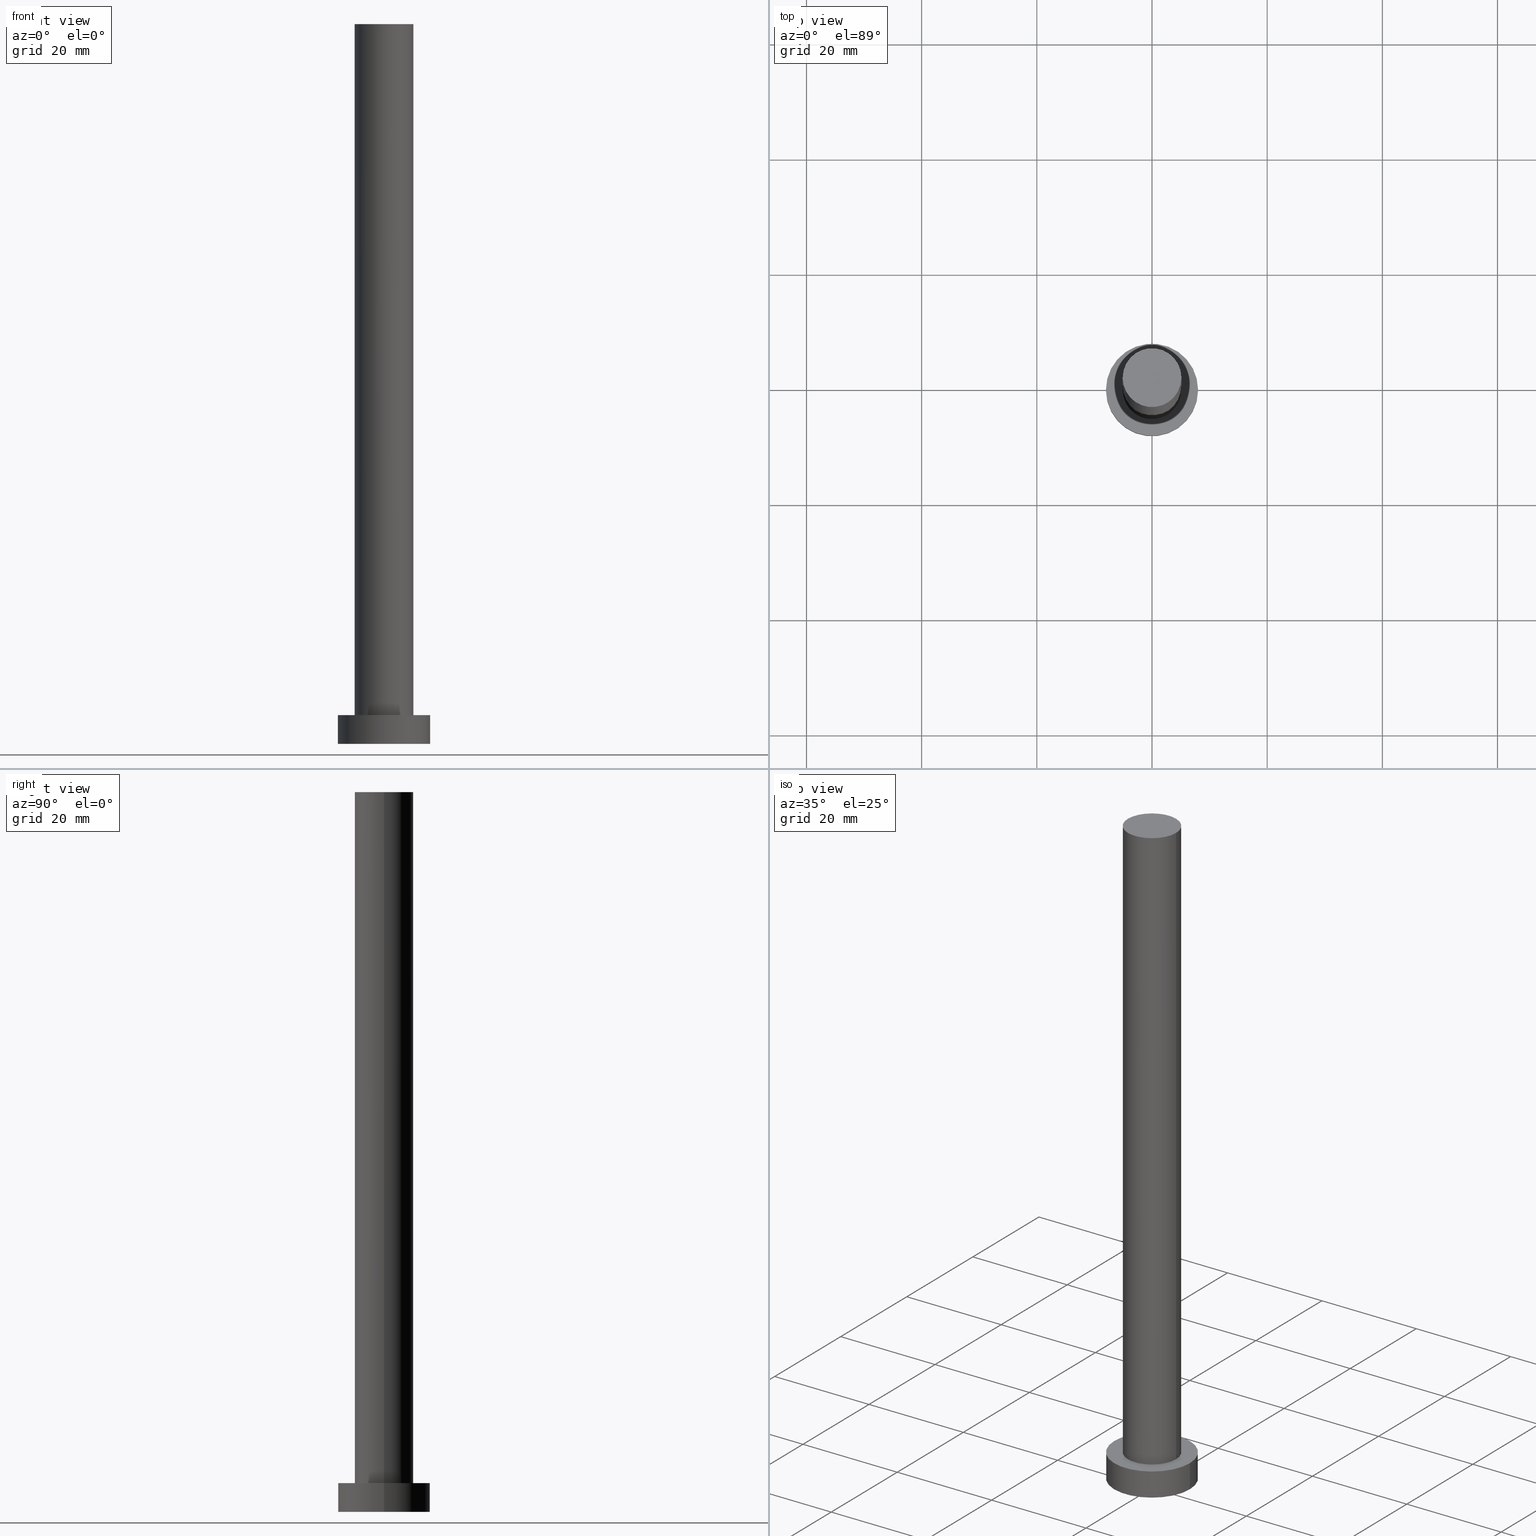
[diagram: canonical four-view strip — front | top / right | iso, engineering-drawing reading convention]
A machine part, canonical four-view strip (front | top / right | iso — engineering-drawing reading convention). The complete STEP part file that produces these views, byte-faithful:
ISO-10303-21;
HEADER;
FILE_DESCRIPTION (( 'STEP AP203' ),
    '1' );
FILE_NAME ('ab03.STEP',
    '2023-02-13T13:16:17',
    ( '' ),
    ( '' ),
    'SwSTEP 2.0',
    'SolidWorks 2019',
    '' );
FILE_SCHEMA (( 'CONFIG_CONTROL_DESIGN' ));
ENDSEC;

DATA;
#1 = DIRECTION ( 'NONE',  ( -0.000000000000000000, -0.000000000000000000, -1.000000000000000000 ) ) ;
#2 = APPROVAL_PERSON_ORGANIZATION ( #227, #40, #85 ) ;
#3 = CARTESIAN_POINT ( 'NONE',  ( 5.099999999999999645, 6.245698675651500839E-16, 125.0000000000000000 ) ) ;
#4 = AXIS2_PLACEMENT_3D ( 'NONE', #135, #86, #87 ) ;
#5 = CARTESIAN_POINT ( 'NONE',  ( -8.000000000000000000, 0.000000000000000000, 5.000000000000000000 ) ) ;
#6 = APPLICATION_PROTOCOL_DEFINITION ( 'international standard', 'config_control_design', 1994, #169 ) ;
#7 = LOCAL_TIME ( 14, 16, 17.00000000000000000, #183 ) ;
#8 = EDGE_CURVE ( 'NONE', #83, #212, #221, .T. ) ;
#9 = SHAPE_DEFINITION_REPRESENTATION ( #141, #186 ) ;
#10 = ORIENTED_EDGE ( 'NONE', *, *, #194, .F. ) ;
#11 = CARTESIAN_POINT ( 'NONE',  ( 0.000000000000000000, 0.000000000000000000, 125.0000000000000000 ) ) ;
#12 = APPROVAL ( #128, 'NEUR�EN�' ) ;
#13 = CARTESIAN_POINT ( 'NONE',  ( 0.000000000000000000, 0.000000000000000000, 125.0000000000000000 ) ) ;
#14 = CC_DESIGN_APPROVAL ( #104, ( #189 ) ) ;
#15 = CYLINDRICAL_SURFACE ( 'NONE', #22, 8.000000000000000000 ) ;
#16 = DIRECTION ( 'NONE',  ( 0.000000000000000000, 0.000000000000000000, 1.000000000000000000 ) ) ;
#17 = CARTESIAN_POINT ( 'NONE',  ( 0.000000000000000000, 0.000000000000000000, 5.000000000000000000 ) ) ;
#18 = CIRCLE ( 'NONE', #66, 8.000000000000000000 ) ;
#19 = CARTESIAN_POINT ( 'NONE',  ( 5.099999999999999645, 6.245698675651500839E-16, 125.0000000000000000 ) ) ;
#20 = DIRECTION ( 'NONE',  ( 0.000000000000000000, 0.000000000000000000, 1.000000000000000000 ) ) ;
#21 = DIRECTION ( 'NONE',  ( 0.000000000000000000, 0.000000000000000000, 1.000000000000000000 ) ) ;
#22 = AXIS2_PLACEMENT_3D ( 'NONE', #175, #215, #35 ) ;
#23 = PRODUCT_DEFINITION_FORMATION_WITH_SPECIFIED_SOURCE ( 'LIBOVOLN�', '', #117, .NOT_KNOWN. ) ;
#24 = PERSON_AND_ORGANIZATION ( #226, #249 ) ;
#25 = PERSON_AND_ORGANIZATION ( #226, #249 ) ;
#26 = EDGE_CURVE ( 'NONE', #212, #83, #239, .T. ) ;
#27 = ORIENTED_EDGE ( 'NONE', *, *, #237, .T. ) ;
#28 = ADVANCED_FACE ( 'NONE', ( #116 ), #193, .T. ) ;
#29 = CARTESIAN_POINT ( 'NONE',  ( 0.000000000000000000, 0.000000000000000000, 5.000000000000000000 ) ) ;
#30 = EDGE_CURVE ( 'NONE', #244, #68, #56, .T. ) ;
#31 = DIRECTION ( 'NONE',  ( -1.000000000000000000, 0.000000000000000000, 0.000000000000000000 ) ) ;
#32 = DESIGN_CONTEXT ( 'detailed design', #169, 'design' ) ;
#33 = AXIS2_PLACEMENT_3D ( 'NONE', #13, #53, #251 ) ;
#34 = PLANE ( 'NONE',  #47 ) ;
#35 = DIRECTION ( 'NONE',  ( -1.000000000000000000, 0.000000000000000000, 0.000000000000000000 ) ) ;
#36 = EDGE_LOOP ( 'NONE', ( #133, #154 ) ) ;
#37 = CC_DESIGN_SECURITY_CLASSIFICATION ( #105, ( #23 ) ) ;
#38 = UNCERTAINTY_MEASURE_WITH_UNIT (LENGTH_MEASURE( 1.000000000000000082E-05 ), #95, 'distance_accuracy_value', 'NONE');
#39 = APPLICATION_PROTOCOL_DEFINITION ( 'international standard', 'config_control_design', 1994, #153 ) ;
#40 = APPROVAL ( #190, 'NEUR�EN�' ) ;
#41 = DIRECTION ( 'NONE',  ( -0.000000000000000000, -0.000000000000000000, -1.000000000000000000 ) ) ;
#42 = DIRECTION ( 'NONE',  ( 1.000000000000000000, 0.000000000000000000, -0.000000000000000000 ) ) ;
#43 = DIRECTION ( 'NONE',  ( -1.000000000000000000, 0.000000000000000000, 0.000000000000000000 ) ) ;
#44 = PERSON_AND_ORGANIZATION ( #226, #249 ) ;
#45 = ADVANCED_FACE ( 'NONE', ( #173, #252 ), #109, .T. ) ;
#46 = COORDINATED_UNIVERSAL_TIME_OFFSET ( 1, 0, .AHEAD. ) ;
#47 = AXIS2_PLACEMENT_3D ( 'NONE', #113, #197, #199 ) ;
#48 = ORIENTED_EDGE ( 'NONE', *, *, #195, .T. ) ;
#49 = VERTEX_POINT ( 'NONE', #235 ) ;
#50 = ORIENTED_EDGE ( 'NONE', *, *, #172, .F. ) ;
#51 = VECTOR ( 'NONE', #41, 1000.000000000000000 ) ;
#52 = VERTEX_POINT ( 'NONE', #174 ) ;
#53 = DIRECTION ( 'NONE',  ( -0.000000000000000000, -0.000000000000000000, -1.000000000000000000 ) ) ;
#54 = AXIS2_PLACEMENT_3D ( 'NONE', #140, #180, #96 ) ;
#55 = CARTESIAN_POINT ( 'NONE',  ( -8.000000000000000000, 0.000000000000000000, 0.000000000000000000 ) ) ;
#56 = LINE ( 'NONE', #139, #70 ) ;
#57 = DIRECTION ( 'NONE',  ( 1.000000000000000000, 0.000000000000000000, 0.000000000000000000 ) ) ;
#58 = LINE ( 'NONE', #19, #209 ) ;
#59 = CC_DESIGN_DATE_AND_TIME_ASSIGNMENT ( #81, #243, ( #189 ) ) ;
#60 = AXIS2_PLACEMENT_3D ( 'NONE', #17, #72, #254 ) ;
#61 = CARTESIAN_POINT ( 'NONE',  ( 0.000000000000000000, 0.000000000000000000, 125.0000000000000000 ) ) ;
#62 = CIRCLE ( 'NONE', #130, 5.099999999999999645 ) ;
#63 = COORDINATED_UNIVERSAL_TIME_OFFSET ( 1, 0, .AHEAD. ) ;
#64 = ORIENTED_EDGE ( 'NONE', *, *, #198, .T. ) ;
#65 = DATE_AND_TIME ( #250, #192 ) ;
#66 = AXIS2_PLACEMENT_3D ( 'NONE', #178, #121, #217 ) ;
#67 = APPROVAL_DATE_TIME ( #107, #104 ) ;
#68 = VERTEX_POINT ( 'NONE', #55 ) ;
#69 = FACE_OUTER_BOUND ( 'NONE', #176, .T. ) ;
#70 = VECTOR ( 'NONE', #1, 1000.000000000000000 ) ;
#71 = DIRECTION ( 'NONE',  ( -0.000000000000000000, -0.000000000000000000, -1.000000000000000000 ) ) ;
#72 = DIRECTION ( 'NONE',  ( 0.000000000000000000, 0.000000000000000000, 1.000000000000000000 ) ) ;
#73 = EDGE_LOOP ( 'NONE', ( #134, #185, #213, #64 ) ) ;
#74 = ORIENTED_EDGE ( 'NONE', *, *, #26, .T. ) ;
#75 = CC_DESIGN_APPROVAL ( #40, ( #105 ) ) ;
#76 = CARTESIAN_POINT ( 'NONE',  ( 0.000000000000000000, 0.000000000000000000, 5.000000000000000000 ) ) ;
#77 = FACE_OUTER_BOUND ( 'NONE', #211, .T. ) ;
#78 = PERSON_AND_ORGANIZATION ( #226, #249 ) ;
#79 = PERSON_AND_ORGANIZATION ( #226, #249 ) ;
#80 = CLOSED_SHELL ( 'NONE', ( #111, #122, #28, #45, #119, #152, #245 ) ) ;
#81 = DATE_AND_TIME ( #224, #166 ) ;
#82 = CC_DESIGN_DATE_AND_TIME_ASSIGNMENT ( #230, #248, ( #105 ) ) ;
#83 = VERTEX_POINT ( 'NONE', #216 ) ;
#84 = ORIENTED_EDGE ( 'NONE', *, *, #26, .F. ) ;
#85 = APPROVAL_ROLE ( '' ) ;
#86 = DIRECTION ( 'NONE',  ( 0.000000000000000000, 0.000000000000000000, 1.000000000000000000 ) ) ;
#87 = DIRECTION ( 'NONE',  ( 1.000000000000000000, 0.000000000000000000, 0.000000000000000000 ) ) ;
#88 =( GEOMETRIC_REPRESENTATION_CONTEXT ( 3 ) GLOBAL_UNCERTAINTY_ASSIGNED_CONTEXT ( ( #38 ) ) GLOBAL_UNIT_ASSIGNED_CONTEXT ( ( #95, #162, #219 ) ) REPRESENTATION_CONTEXT ( 'NONE', 'WORKASPACE' ) );
#89 = CARTESIAN_POINT ( 'NONE',  ( 8.000000000000000000, 9.797174393178825657E-16, 5.000000000000000000 ) ) ;
#90 = EDGE_LOOP ( 'NONE', ( #223, #103, #115, #27 ) ) ;
#91 = EDGE_CURVE ( 'NONE', #52, #131, #112, .T. ) ;
#92 = CARTESIAN_POINT ( 'NONE',  ( 0.000000000000000000, 0.000000000000000000, 125.0000000000000000 ) ) ;
#93 = EDGE_CURVE ( 'NONE', #49, #231, #159, .T. ) ;
#94 = DIRECTION ( 'NONE',  ( -0.000000000000000000, -0.000000000000000000, -1.000000000000000000 ) ) ;
#95 =( LENGTH_UNIT ( ) NAMED_UNIT ( * ) SI_UNIT ( .MILLI., .METRE. ) );
#96 = DIRECTION ( 'NONE',  ( 1.000000000000000000, 0.000000000000000000, 0.000000000000000000 ) ) ;
#97 = CIRCLE ( 'NONE', #54, 8.000000000000000000 ) ;
#98 = APPROVAL_PERSON_ORGANIZATION ( #25, #12, #102 ) ;
#99 = CARTESIAN_POINT ( 'NONE',  ( 0.000000000000000000, 0.000000000000000000, 0.000000000000000000 ) ) ;
#100 = CC_DESIGN_PERSON_AND_ORGANIZATION_ASSIGNMENT ( #44, #101, ( #189 ) ) ;
#101 = PERSON_AND_ORGANIZATION_ROLE ( 'creator' ) ;
#102 = APPROVAL_ROLE ( '' ) ;
#103 = ORIENTED_EDGE ( 'NONE', *, *, #8, .F. ) ;
#104 = APPROVAL ( #165, 'NEUR�EN�' ) ;
#105 = SECURITY_CLASSIFICATION ( '', '', #229 ) ;
#106 = APPROVAL_DATE_TIME ( #168, #12 ) ;
#107 = DATE_AND_TIME ( #125, #218 ) ;
#108 = AXIS2_PLACEMENT_3D ( 'NONE', #29, #200, #31 ) ;
#109 = PLANE ( 'NONE',  #60 ) ;
#110 = FACE_OUTER_BOUND ( 'NONE', #247, .T. ) ;
#111 = ADVANCED_FACE ( 'NONE', ( #110 ), #196, .T. ) ;
#112 = CIRCLE ( 'NONE', #129, 5.099999999999999645 ) ;
#113 = CARTESIAN_POINT ( 'NONE',  ( 0.000000000000000000, 0.000000000000000000, 0.000000000000000000 ) ) ;
#114 = AXIS2_PLACEMENT_3D ( 'NONE', #99, #145, #222 ) ;
#115 = ORIENTED_EDGE ( 'NONE', *, *, #172, .T. ) ;
#116 = FACE_OUTER_BOUND ( 'NONE', #73, .T. ) ;
#117 = PRODUCT ( 'ab03', 'ab03', '', ( #120 ) ) ;
#118 = PLANE ( 'NONE',  #228 ) ;
#119 = ADVANCED_FACE ( 'NONE', ( #137 ), #34, .F. ) ;
#120 = MECHANICAL_CONTEXT ( 'NONE', #153, 'mechanical' ) ;
#121 = DIRECTION ( 'NONE',  ( 0.000000000000000000, 0.000000000000000000, 1.000000000000000000 ) ) ;
#122 = ADVANCED_FACE ( 'NONE', ( #69 ), #15, .T. ) ;
#123 = DIRECTION ( 'NONE',  ( -0.000000000000000000, -0.000000000000000000, -1.000000000000000000 ) ) ;
#124 = CARTESIAN_POINT ( 'NONE',  ( -5.099999999999999645, 0.000000000000000000, 125.0000000000000000 ) ) ;
#125 = CALENDAR_DATE ( 2023, 13, 2 ) ;
#126 = EDGE_CURVE ( 'NONE', #49, #244, #97, .T. ) ;
#127 = ORIENTED_EDGE ( 'NONE', *, *, #93, .T. ) ;
#128 = APPROVAL_STATUS ( 'not_yet_approved' ) ;
#129 = AXIS2_PLACEMENT_3D ( 'NONE', #171, #157, #233 ) ;
#130 = AXIS2_PLACEMENT_3D ( 'NONE', #205, #177, #57 ) ;
#131 = VERTEX_POINT ( 'NONE', #203 ) ;
#132 = PERSON_AND_ORGANIZATION ( #226, #249 ) ;
#133 = ORIENTED_EDGE ( 'NONE', *, *, #234, .T. ) ;
#134 = ORIENTED_EDGE ( 'NONE', *, *, #93, .F. ) ;
#135 = CARTESIAN_POINT ( 'NONE',  ( 0.000000000000000000, 0.000000000000000000, 125.0000000000000000 ) ) ;
#136 = CC_DESIGN_PERSON_AND_ORGANIZATION_ASSIGNMENT ( #79, #191, ( #105 ) ) ;
#137 = FACE_OUTER_BOUND ( 'NONE', #188, .T. ) ;
#138 = VECTOR ( 'NONE', #71, 1000.000000000000000 ) ;
#139 = CARTESIAN_POINT ( 'NONE',  ( -8.000000000000000000, 0.000000000000000000, 5.000000000000000000 ) ) ;
#140 = CARTESIAN_POINT ( 'NONE',  ( 0.000000000000000000, 0.000000000000000000, 5.000000000000000000 ) ) ;
#141 = PRODUCT_DEFINITION_SHAPE ( 'NONE', 'NONE',  #189 ) ;
#142 = MANIFOLD_SOLID_BREP ( 'P�idat vysunut�m3', #80 ) ;
#143 = CARTESIAN_POINT ( 'NONE',  ( 8.000000000000000000, 9.797174393178825657E-16, 0.000000000000000000 ) ) ;
#144 = LINE ( 'NONE', #124, #51 ) ;
#145 = DIRECTION ( 'NONE',  ( 0.000000000000000000, 0.000000000000000000, 1.000000000000000000 ) ) ;
#146 = AXIS2_PLACEMENT_3D ( 'NONE', #76, #20, #164 ) ;
#147 = ORIENTED_EDGE ( 'NONE', *, *, #194, .T. ) ;
#148 = CALENDAR_DATE ( 2023, 13, 2 ) ;
#149 = ORIENTED_EDGE ( 'NONE', *, *, #198, .F. ) ;
#150 = ORIENTED_EDGE ( 'NONE', *, *, #30, .F. ) ;
#151 = APPROVAL_DATE_TIME ( #65, #40 ) ;
#152 = ADVANCED_FACE ( 'NONE', ( #161 ), #241, .T. ) ;
#153 = APPLICATION_CONTEXT ( 'configuration controlled 3d designs of mechanical parts and assemblies' ) ;
#154 = ORIENTED_EDGE ( 'NONE', *, *, #126, .T. ) ;
#155 = CC_DESIGN_APPROVAL ( #12, ( #23 ) ) ;
#156 = ORIENTED_EDGE ( 'NONE', *, *, #126, .F. ) ;
#157 = DIRECTION ( 'NONE',  ( 0.000000000000000000, 0.000000000000000000, 1.000000000000000000 ) ) ;
#158 = ORIENTED_EDGE ( 'NONE', *, *, #91, .F. ) ;
#159 = LINE ( 'NONE', #89, #138 ) ;
#160 = CIRCLE ( 'NONE', #146, 8.000000000000000000 ) ;
#161 = FACE_OUTER_BOUND ( 'NONE', #90, .T. ) ;
#162 =( NAMED_UNIT ( * ) PLANE_ANGLE_UNIT ( ) SI_UNIT ( $, .RADIAN. ) );
#163 = AXIS2_PLACEMENT_3D ( 'NONE', #11, #16, #232 ) ;
#164 = DIRECTION ( 'NONE',  ( 1.000000000000000000, 0.000000000000000000, 0.000000000000000000 ) ) ;
#165 = APPROVAL_STATUS ( 'not_yet_approved' ) ;
#166 = LOCAL_TIME ( 14, 16, 17.00000000000000000, #63 ) ;
#167 = PERSON_AND_ORGANIZATION ( #226, #249 ) ;
#168 = DATE_AND_TIME ( #184, #170 ) ;
#169 = APPLICATION_CONTEXT ( 'configuration controlled 3d designs of mechanical parts and assemblies' ) ;
#170 = LOCAL_TIME ( 14, 16, 17.00000000000000000, #207 ) ;
#171 = CARTESIAN_POINT ( 'NONE',  ( 0.000000000000000000, 0.000000000000000000, 5.000000000000000000 ) ) ;
#172 = EDGE_CURVE ( 'NONE', #83, #131, #144, .T. ) ;
#173 = FACE_BOUND ( 'NONE', #236, .T. ) ;
#174 = CARTESIAN_POINT ( 'NONE',  ( 5.099999999999999645, 6.245698675651500839E-16, 5.000000000000000000 ) ) ;
#175 = CARTESIAN_POINT ( 'NONE',  ( 0.000000000000000000, 0.000000000000000000, 5.000000000000000000 ) ) ;
#176 = EDGE_LOOP ( 'NONE', ( #156, #127, #147, #150 ) ) ;
#177 = DIRECTION ( 'NONE',  ( 0.000000000000000000, 0.000000000000000000, 1.000000000000000000 ) ) ;
#178 = CARTESIAN_POINT ( 'NONE',  ( 0.000000000000000000, 0.000000000000000000, 0.000000000000000000 ) ) ;
#179 = CC_DESIGN_PERSON_AND_ORGANIZATION_ASSIGNMENT ( #132, #187, ( #23 ) ) ;
#180 = DIRECTION ( 'NONE',  ( 0.000000000000000000, 0.000000000000000000, 1.000000000000000000 ) ) ;
#181 = AXIS2_PLACEMENT_3D ( 'NONE', #204, #21, #238 ) ;
#182 = PERSON_AND_ORGANIZATION_ROLE ( 'design_owner' ) ;
#183 = COORDINATED_UNIVERSAL_TIME_OFFSET ( 1, 0, .AHEAD. ) ;
#184 = CALENDAR_DATE ( 2023, 13, 2 ) ;
#185 = ORIENTED_EDGE ( 'NONE', *, *, #234, .F. ) ;
#186 = ADVANCED_BREP_SHAPE_REPRESENTATION ( 'ab03', ( #142, #114 ), #88 ) ;
#187 = PERSON_AND_ORGANIZATION_ROLE ( 'design_supplier' ) ;
#188 = EDGE_LOOP ( 'NONE', ( #149, #10 ) ) ;
#189 = PRODUCT_DEFINITION ( 'NEZN�M�', '', #23, #32 ) ;
#190 = APPROVAL_STATUS ( 'not_yet_approved' ) ;
#191 = PERSON_AND_ORGANIZATION_ROLE ( 'classification_officer' ) ;
#192 = LOCAL_TIME ( 14, 16, 17.00000000000000000, #46 ) ;
#193 = CYLINDRICAL_SURFACE ( 'NONE', #108, 8.000000000000000000 ) ;
#194 = EDGE_CURVE ( 'NONE', #231, #68, #214, .T. ) ;
#195 = EDGE_CURVE ( 'NONE', #212, #52, #58, .T. ) ;
#196 = CYLINDRICAL_SURFACE ( 'NONE', #33, 5.099999999999999645 ) ;
#197 = DIRECTION ( 'NONE',  ( 0.000000000000000000, 0.000000000000000000, 1.000000000000000000 ) ) ;
#198 = EDGE_CURVE ( 'NONE', #68, #231, #18, .T. ) ;
#199 = DIRECTION ( 'NONE',  ( 1.000000000000000000, 0.000000000000000000, -0.000000000000000000 ) ) ;
#200 = DIRECTION ( 'NONE',  ( -0.000000000000000000, -0.000000000000000000, -1.000000000000000000 ) ) ;
#201 = AXIS2_PLACEMENT_3D ( 'NONE', #92, #123, #43 ) ;
#202 = CC_DESIGN_PERSON_AND_ORGANIZATION_ASSIGNMENT ( #24, #182, ( #117 ) ) ;
#203 = CARTESIAN_POINT ( 'NONE',  ( -5.099999999999999645, 0.000000000000000000, 5.000000000000000000 ) ) ;
#204 = CARTESIAN_POINT ( 'NONE',  ( 0.000000000000000000, 0.000000000000000000, 0.000000000000000000 ) ) ;
#205 = CARTESIAN_POINT ( 'NONE',  ( 0.000000000000000000, 0.000000000000000000, 5.000000000000000000 ) ) ;
#206 = COORDINATED_UNIVERSAL_TIME_OFFSET ( 1, 0, .AHEAD. ) ;
#207 = COORDINATED_UNIVERSAL_TIME_OFFSET ( 1, 0, .AHEAD. ) ;
#208 = ORIENTED_EDGE ( 'NONE', *, *, #237, .F. ) ;
#209 = VECTOR ( 'NONE', #94, 1000.000000000000000 ) ;
#210 = ORIENTED_EDGE ( 'NONE', *, *, #8, .T. ) ;
#211 = EDGE_LOOP ( 'NONE', ( #210, #74 ) ) ;
#212 = VERTEX_POINT ( 'NONE', #3 ) ;
#213 = ORIENTED_EDGE ( 'NONE', *, *, #30, .T. ) ;
#214 = CIRCLE ( 'NONE', #181, 8.000000000000000000 ) ;
#215 = DIRECTION ( 'NONE',  ( -0.000000000000000000, -0.000000000000000000, -1.000000000000000000 ) ) ;
#216 = CARTESIAN_POINT ( 'NONE',  ( -5.099999999999999645, 0.000000000000000000, 125.0000000000000000 ) ) ;
#217 = DIRECTION ( 'NONE',  ( 1.000000000000000000, 0.000000000000000000, 0.000000000000000000 ) ) ;
#218 = LOCAL_TIME ( 14, 16, 17.00000000000000000, #206 ) ;
#219 =( NAMED_UNIT ( * ) SI_UNIT ( $, .STERADIAN. ) SOLID_ANGLE_UNIT ( ) );
#220 = DIRECTION ( 'NONE',  ( 0.000000000000000000, 0.000000000000000000, 1.000000000000000000 ) ) ;
#221 = CIRCLE ( 'NONE', #163, 5.099999999999999645 ) ;
#222 = DIRECTION ( 'NONE',  ( 1.000000000000000000, 0.000000000000000000, 0.000000000000000000 ) ) ;
#223 = ORIENTED_EDGE ( 'NONE', *, *, #195, .F. ) ;
#224 = CALENDAR_DATE ( 2023, 13, 2 ) ;
#225 = CC_DESIGN_PERSON_AND_ORGANIZATION_ASSIGNMENT ( #167, #246, ( #23 ) ) ;
#226 = PERSON ( 'NEUR�EN�', 'NEUR�EN�', 'NEUR�EN�', ('NEUR�EN�'), ('NEUR�EN�'), ('NEUR�EN�') ) ;
#227 = PERSON_AND_ORGANIZATION ( #226, #249 ) ;
#228 = AXIS2_PLACEMENT_3D ( 'NONE', #61, #220, #42 ) ;
#229 = SECURITY_CLASSIFICATION_LEVEL ( 'unclassified' ) ;
#230 = DATE_AND_TIME ( #148, #7 ) ;
#231 = VERTEX_POINT ( 'NONE', #143 ) ;
#232 = DIRECTION ( 'NONE',  ( 1.000000000000000000, 0.000000000000000000, 0.000000000000000000 ) ) ;
#233 = DIRECTION ( 'NONE',  ( 1.000000000000000000, 0.000000000000000000, 0.000000000000000000 ) ) ;
#234 = EDGE_CURVE ( 'NONE', #244, #49, #160, .T. ) ;
#235 = CARTESIAN_POINT ( 'NONE',  ( 8.000000000000000000, 9.797174393178825657E-16, 5.000000000000000000 ) ) ;
#236 = EDGE_LOOP ( 'NONE', ( #208, #158 ) ) ;
#237 = EDGE_CURVE ( 'NONE', #131, #52, #62, .T. ) ;
#238 = DIRECTION ( 'NONE',  ( 1.000000000000000000, 0.000000000000000000, 0.000000000000000000 ) ) ;
#239 = CIRCLE ( 'NONE', #4, 5.099999999999999645 ) ;
#240 = APPROVAL_PERSON_ORGANIZATION ( #78, #104, #242 ) ;
#241 = CYLINDRICAL_SURFACE ( 'NONE', #201, 5.099999999999999645 ) ;
#242 = APPROVAL_ROLE ( '' ) ;
#243 = DATE_TIME_ROLE ( 'creation_date' ) ;
#244 = VERTEX_POINT ( 'NONE', #5 ) ;
#245 = ADVANCED_FACE ( 'NONE', ( #77 ), #118, .T. ) ;
#246 = PERSON_AND_ORGANIZATION_ROLE ( 'creator' ) ;
#247 = EDGE_LOOP ( 'NONE', ( #84, #48, #255, #50 ) ) ;
#248 = DATE_TIME_ROLE ( 'classification_date' ) ;
#249 = ORGANIZATION ( 'NEUR�EN�', 'NEUR�EN�', '' ) ;
#250 = CALENDAR_DATE ( 2023, 13, 2 ) ;
#251 = DIRECTION ( 'NONE',  ( -1.000000000000000000, 0.000000000000000000, 0.000000000000000000 ) ) ;
#252 = FACE_OUTER_BOUND ( 'NONE', #36, .T. ) ;
#253 = PRODUCT_RELATED_PRODUCT_CATEGORY ( 'detail', '', ( #117 ) ) ;
#254 = DIRECTION ( 'NONE',  ( 1.000000000000000000, 0.000000000000000000, -0.000000000000000000 ) ) ;
#255 = ORIENTED_EDGE ( 'NONE', *, *, #91, .T. ) ;
ENDSEC;
END-ISO-10303-21;
